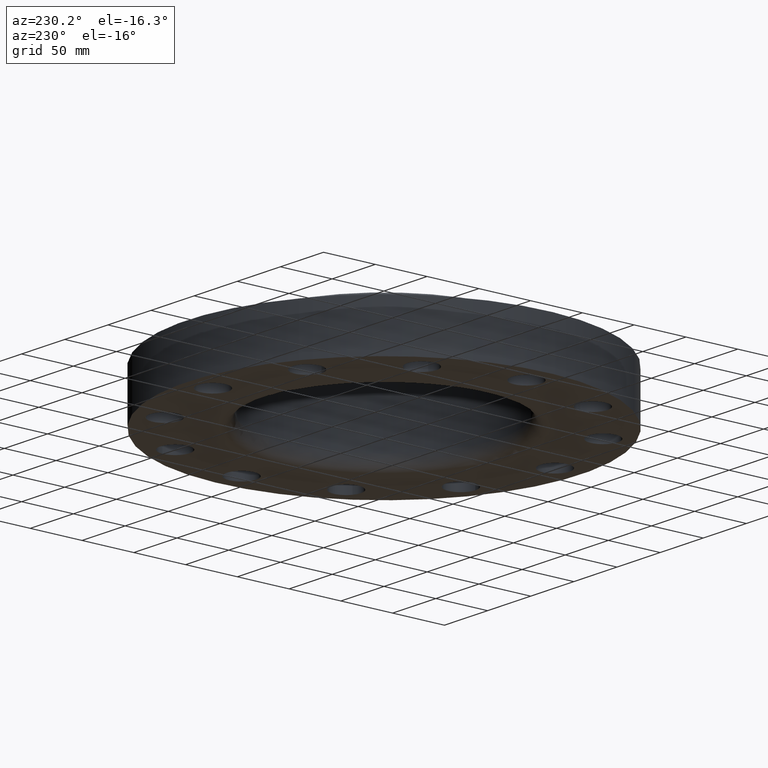
[diagram: clean part render]
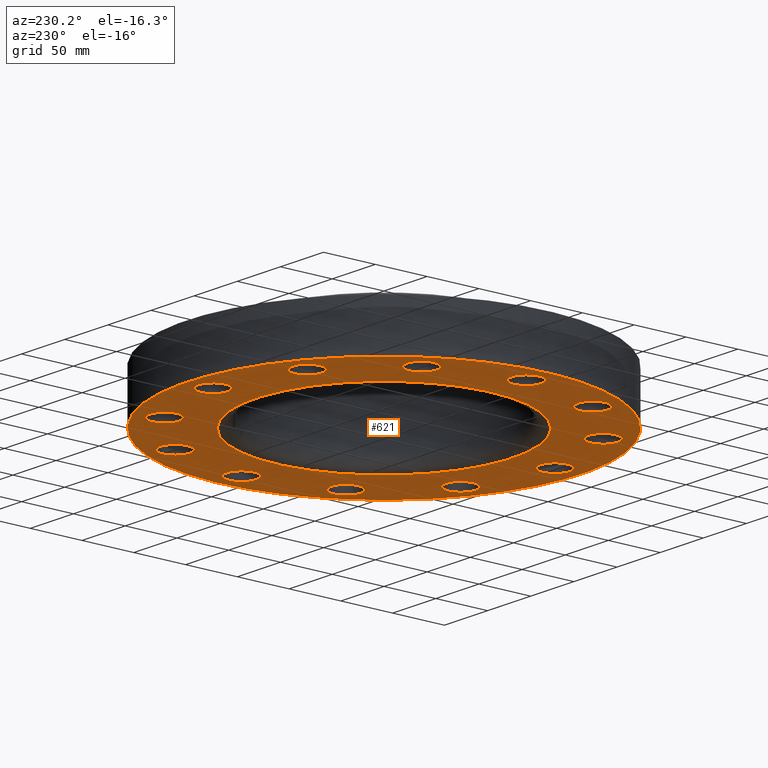
[diagram: same view with one face highlighted and labeled with its STEP entity id]
A machine part, auxiliary view. The second image highlights one B-rep face of the part: STEP entity #621.
In plain terms, the highlighted planar face has unit normal (0, 0, -1).
Its self-contained STEP definition (entity closure, byte-faithful):
#51=AXIS2_PLACEMENT_3D('Circle Axis2P3D',#49,#50,$) ;
#77=AXIS2_PLACEMENT_3D('Circle Axis2P3D',#75,#76,$) ;
#99=AXIS2_PLACEMENT_3D('Circle Axis2P3D',#97,#98,$) ;
#134=AXIS2_PLACEMENT_3D('Circle Axis2P3D',#132,#133,$) ;
#377=AXIS2_PLACEMENT_3D('Circle Axis2P3D',#375,#376,$) ;
#396=AXIS2_PLACEMENT_3D('Circle Axis2P3D',#394,#395,$) ;
#409=AXIS2_PLACEMENT_3D('Plane Axis2P3D',#406,#407,#408) ;
#425=AXIS2_PLACEMENT_3D('Circle Axis2P3D',#423,#424,$) ;
#434=AXIS2_PLACEMENT_3D('Circle Axis2P3D',#432,#433,$) ;
#443=AXIS2_PLACEMENT_3D('Circle Axis2P3D',#441,#442,$) ;
#452=AXIS2_PLACEMENT_3D('Circle Axis2P3D',#450,#451,$) ;
#461=AXIS2_PLACEMENT_3D('Circle Axis2P3D',#459,#460,$) ;
#470=AXIS2_PLACEMENT_3D('Circle Axis2P3D',#468,#469,$) ;
#479=AXIS2_PLACEMENT_3D('Circle Axis2P3D',#477,#478,$) ;
#488=AXIS2_PLACEMENT_3D('Circle Axis2P3D',#486,#487,$) ;
#497=AXIS2_PLACEMENT_3D('Circle Axis2P3D',#495,#496,$) ;
#506=AXIS2_PLACEMENT_3D('Circle Axis2P3D',#504,#505,$) ;
#515=AXIS2_PLACEMENT_3D('Circle Axis2P3D',#513,#514,$) ;
#524=AXIS2_PLACEMENT_3D('Circle Axis2P3D',#522,#523,$) ;
#533=AXIS2_PLACEMENT_3D('Circle Axis2P3D',#531,#532,$) ;
#542=AXIS2_PLACEMENT_3D('Circle Axis2P3D',#540,#541,$) ;
#551=AXIS2_PLACEMENT_3D('Circle Axis2P3D',#549,#550,$) ;
#560=AXIS2_PLACEMENT_3D('Circle Axis2P3D',#558,#559,$) ;
#569=AXIS2_PLACEMENT_3D('Circle Axis2P3D',#567,#568,$) ;
#578=AXIS2_PLACEMENT_3D('Circle Axis2P3D',#576,#577,$) ;
#587=AXIS2_PLACEMENT_3D('Circle Axis2P3D',#585,#586,$) ;
#596=AXIS2_PLACEMENT_3D('Circle Axis2P3D',#594,#595,$) ;
#605=AXIS2_PLACEMENT_3D('Circle Axis2P3D',#603,#604,$) ;
#614=AXIS2_PLACEMENT_3D('Circle Axis2P3D',#612,#613,$) ;
#44=CARTESIAN_POINT('Vertex',(6.00855376537,0.268478301619,0.)) ;
#49=CARTESIAN_POINT('Axis2P3D Location',(6.50000000003,0.,0.)) ;
#53=CARTESIAN_POINT('Vertex',(6.99144623469,-0.268478301619,0.)) ;
#75=CARTESIAN_POINT('Axis2P3D Location',(6.50000000003,0.,0.)) ;
#97=CARTESIAN_POINT('Axis2P3D Location',(0.,0.,8.39223703654E-016)) ;
#101=CARTESIAN_POINT('Vertex',(-3.59569153955,-6.5818692142,8.39223703654E-016)) ;
#103=CARTESIAN_POINT('Vertex',(3.59569153955,6.5818692142,8.39223703654E-016)) ;
#132=CARTESIAN_POINT('Axis2P3D Location',(0.,0.,8.39223703654E-016)) ;
#372=CARTESIAN_POINT('Vertex',(-2.3371995007,-4.27821498923,-4.89547160465E-016)) ;
#375=CARTESIAN_POINT('Axis2P3D Location',(0.,0.,-4.89547160465E-016)) ;
#379=CARTESIAN_POINT('Vertex',(2.3371995007,4.27821498923,-4.89547160465E-016)) ;
#394=CARTESIAN_POINT('Axis2P3D Location',(0.,0.,-4.89547160465E-016)) ;
#406=CARTESIAN_POINT('Axis2P3D Location',(0.,4.87500000002,0.)) ;
#423=CARTESIAN_POINT('Axis2P3D Location',(5.62916512462,-3.25000000001,0.)) ;
#427=CARTESIAN_POINT('Vertex',(5.33779935162,-2.77176785312,0.)) ;
#429=CARTESIAN_POINT('Vertex',(5.92053089762,-3.72823214691,0.)) ;
#432=CARTESIAN_POINT('Axis2P3D Location',(5.62916512462,-3.25000000001,0.)) ;
#441=CARTESIAN_POINT('Axis2P3D Location',(3.25000000001,-5.62916512462,0.)) ;
#445=CARTESIAN_POINT('Vertex',(3.23678591225,-5.06932105,0.)) ;
#447=CARTESIAN_POINT('Vertex',(3.26321408778,-6.18900919924,0.)) ;
#450=CARTESIAN_POINT('Axis2P3D Location',(3.25000000001,-5.62916512462,0.)) ;
#459=CARTESIAN_POINT('Axis2P3D Location',(-1.95818864186E-015,-6.50000000003,0.)) ;
#463=CARTESIAN_POINT('Vertex',(0.268478301619,-6.00855376537,0.)) ;
#465=CARTESIAN_POINT('Vertex',(-0.268478301619,-6.99144623469,0.)) ;
#468=CARTESIAN_POINT('Axis2P3D Location',(-6.99353086378E-016,-6.50000000003,0.)) ;
#477=CARTESIAN_POINT('Axis2P3D Location',(-3.25000000001,-5.62916512462,0.)) ;
#481=CARTESIAN_POINT('Vertex',(-2.77176785312,-5.33779935162,0.)) ;
#483=CARTESIAN_POINT('Vertex',(-3.72823214691,-5.92053089762,-1.67844740731E-015)) ;
#486=CARTESIAN_POINT('Axis2P3D Location',(-3.25000000001,-5.62916512462,0.)) ;
#495=CARTESIAN_POINT('Axis2P3D Location',(-5.62916512462,-3.25000000001,0.)) ;
#499=CARTESIAN_POINT('Vertex',(-5.06932105,-3.23678591225,0.)) ;
#501=CARTESIAN_POINT('Vertex',(-6.18900919924,-3.26321408778,0.)) ;
#504=CARTESIAN_POINT('Axis2P3D Location',(-5.62916512462,-3.25000000001,0.)) ;
#513=CARTESIAN_POINT('Axis2P3D Location',(-6.50000000003,0.,0.)) ;
#517=CARTESIAN_POINT('Vertex',(-6.00855376537,-0.268478301619,0.)) ;
#519=CARTESIAN_POINT('Vertex',(-6.99144623469,0.268478301619,0.)) ;
#522=CARTESIAN_POINT('Axis2P3D Location',(-6.50000000003,-5.59482469102E-016,0.)) ;
#531=CARTESIAN_POINT('Axis2P3D Location',(-5.62916512462,3.25000000001,0.)) ;
#535=CARTESIAN_POINT('Vertex',(-5.33779935162,2.77176785312,0.)) ;
#537=CARTESIAN_POINT('Vertex',(-5.92053089762,3.72823214691,0.)) ;
#540=CARTESIAN_POINT('Axis2P3D Location',(-5.62916512462,3.25000000001,0.)) ;
#549=CARTESIAN_POINT('Axis2P3D Location',(-3.25000000001,5.62916512462,0.)) ;
#553=CARTESIAN_POINT('Vertex',(-3.23678591225,5.06932105,0.)) ;
#555=CARTESIAN_POINT('Vertex',(-3.26321408778,6.18900919924,0.)) ;
#558=CARTESIAN_POINT('Axis2P3D Location',(-3.25000000001,5.62916512462,0.)) ;
#567=CARTESIAN_POINT('Axis2P3D Location',(-7.69288395016E-016,6.50000000003,0.)) ;
#571=CARTESIAN_POINT('Vertex',(-0.268478301619,6.00855376537,0.)) ;
#573=CARTESIAN_POINT('Vertex',(0.268478301619,6.99144623469,0.)) ;
#576=CARTESIAN_POINT('Axis2P3D Location',(-1.60851209867E-015,6.50000000003,0.)) ;
#585=CARTESIAN_POINT('Axis2P3D Location',(3.25000000001,5.62916512462,0.)) ;
#589=CARTESIAN_POINT('Vertex',(2.77176785312,5.33779935162,0.)) ;
#591=CARTESIAN_POINT('Vertex',(3.72823214691,5.92053089762,0.)) ;
#594=CARTESIAN_POINT('Axis2P3D Location',(3.25000000001,5.62916512462,0.)) ;
#603=CARTESIAN_POINT('Axis2P3D Location',(5.62916512462,3.25000000001,0.)) ;
#607=CARTESIAN_POINT('Vertex',(5.06932105,3.23678591225,0.)) ;
#609=CARTESIAN_POINT('Vertex',(6.18900919924,3.26321408778,0.)) ;
#612=CARTESIAN_POINT('Axis2P3D Location',(5.62916512462,3.25000000001,0.)) ;
#50=DIRECTION('Axis2P3D Direction',(0.,-0.,-0.0393700787402)) ;
#76=DIRECTION('Axis2P3D Direction',(0.,-0.,-0.0393700787402)) ;
#98=DIRECTION('Axis2P3D Direction',(0.,0.,-0.0393700787402)) ;
#133=DIRECTION('Axis2P3D Direction',(0.,0.,-0.0393700787402)) ;
#376=DIRECTION('Axis2P3D Direction',(0.,0.,-0.0393700787402)) ;
#395=DIRECTION('Axis2P3D Direction',(0.,0.,-0.0393700787402)) ;
#407=DIRECTION('Axis2P3D Direction',(0.,0.,-0.0393700787402)) ;
#408=DIRECTION('Axis2P3D XDirection',(0.0393700787402,0.,0.)) ;
#424=DIRECTION('Axis2P3D Direction',(0.,0.,-0.0393700787402)) ;
#433=DIRECTION('Axis2P3D Direction',(0.,0.,-0.0393700787402)) ;
#442=DIRECTION('Axis2P3D Direction',(0.,0.,-0.0393700787402)) ;
#451=DIRECTION('Axis2P3D Direction',(0.,0.,-0.0393700787402)) ;
#460=DIRECTION('Axis2P3D Direction',(0.,0.,-0.0393700787402)) ;
#469=DIRECTION('Axis2P3D Direction',(0.,0.,-0.0393700787402)) ;
#478=DIRECTION('Axis2P3D Direction',(0.,0.,-0.0393700787402)) ;
#487=DIRECTION('Axis2P3D Direction',(0.,0.,-0.0393700787402)) ;
#496=DIRECTION('Axis2P3D Direction',(0.,0.,-0.0393700787402)) ;
#505=DIRECTION('Axis2P3D Direction',(0.,0.,-0.0393700787402)) ;
#514=DIRECTION('Axis2P3D Direction',(0.,0.,-0.0393700787402)) ;
#523=DIRECTION('Axis2P3D Direction',(0.,0.,-0.0393700787402)) ;
#532=DIRECTION('Axis2P3D Direction',(0.,0.,-0.0393700787402)) ;
#541=DIRECTION('Axis2P3D Direction',(0.,0.,-0.0393700787402)) ;
#550=DIRECTION('Axis2P3D Direction',(0.,0.,-0.0393700787402)) ;
#559=DIRECTION('Axis2P3D Direction',(0.,0.,-0.0393700787402)) ;
#568=DIRECTION('Axis2P3D Direction',(0.,0.,-0.0393700787402)) ;
#577=DIRECTION('Axis2P3D Direction',(0.,0.,-0.0393700787402)) ;
#586=DIRECTION('Axis2P3D Direction',(0.,0.,-0.0393700787402)) ;
#595=DIRECTION('Axis2P3D Direction',(0.,0.,-0.0393700787402)) ;
#604=DIRECTION('Axis2P3D Direction',(0.,0.,-0.0393700787402)) ;
#613=DIRECTION('Axis2P3D Direction',(0.,0.,-0.0393700787402)) ;
#412=ORIENTED_EDGE('',*,*,#105,.T.) ;
#413=ORIENTED_EDGE('',*,*,#136,.T.) ;
#416=ORIENTED_EDGE('',*,*,#79,.F.) ;
#417=ORIENTED_EDGE('',*,*,#55,.F.) ;
#420=ORIENTED_EDGE('',*,*,#398,.F.) ;
#421=ORIENTED_EDGE('',*,*,#381,.F.) ;
#438=ORIENTED_EDGE('',*,*,#431,.F.) ;
#439=ORIENTED_EDGE('',*,*,#436,.F.) ;
#456=ORIENTED_EDGE('',*,*,#449,.F.) ;
#457=ORIENTED_EDGE('',*,*,#454,.F.) ;
#474=ORIENTED_EDGE('',*,*,#467,.F.) ;
#475=ORIENTED_EDGE('',*,*,#472,.F.) ;
#492=ORIENTED_EDGE('',*,*,#485,.F.) ;
#493=ORIENTED_EDGE('',*,*,#490,.F.) ;
#510=ORIENTED_EDGE('',*,*,#503,.F.) ;
#511=ORIENTED_EDGE('',*,*,#508,.F.) ;
#528=ORIENTED_EDGE('',*,*,#521,.F.) ;
#529=ORIENTED_EDGE('',*,*,#526,.F.) ;
#546=ORIENTED_EDGE('',*,*,#539,.F.) ;
#547=ORIENTED_EDGE('',*,*,#544,.F.) ;
#564=ORIENTED_EDGE('',*,*,#557,.F.) ;
#565=ORIENTED_EDGE('',*,*,#562,.F.) ;
#582=ORIENTED_EDGE('',*,*,#575,.F.) ;
#583=ORIENTED_EDGE('',*,*,#580,.F.) ;
#600=ORIENTED_EDGE('',*,*,#593,.F.) ;
#601=ORIENTED_EDGE('',*,*,#598,.F.) ;
#618=ORIENTED_EDGE('',*,*,#611,.F.) ;
#619=ORIENTED_EDGE('',*,*,#616,.F.) ;
#418=FACE_BOUND('',#415,.T.) ;
#422=FACE_BOUND('',#419,.T.) ;
#440=FACE_BOUND('',#437,.T.) ;
#458=FACE_BOUND('',#455,.T.) ;
#476=FACE_BOUND('',#473,.T.) ;
#494=FACE_BOUND('',#491,.T.) ;
#512=FACE_BOUND('',#509,.T.) ;
#530=FACE_BOUND('',#527,.T.) ;
#548=FACE_BOUND('',#545,.T.) ;
#566=FACE_BOUND('',#563,.T.) ;
#584=FACE_BOUND('',#581,.T.) ;
#602=FACE_BOUND('',#599,.T.) ;
#620=FACE_BOUND('',#617,.T.) ;
#621=ADVANCED_FACE('PartBody',(#414,#418,#422,#440,#458,#476,#494,#512,#530,#548,#566,#584,#602,#620),#410,.T.) ;
#52=CIRCLE('generated circle',#51,0.560000000002) ;
#78=CIRCLE('generated circle',#77,0.560000000002) ;
#100=CIRCLE('generated circle',#99,7.50000000003) ;
#135=CIRCLE('generated circle',#134,7.50000000003) ;
#378=CIRCLE('generated circle',#377,4.87500000002) ;
#397=CIRCLE('generated circle',#396,4.87500000002) ;
#426=CIRCLE('generated circle',#425,0.560000000002) ;
#435=CIRCLE('generated circle',#434,0.560000000002) ;
#444=CIRCLE('generated circle',#443,0.560000000002) ;
#453=CIRCLE('generated circle',#452,0.560000000002) ;
#462=CIRCLE('generated circle',#461,0.560000000002) ;
#471=CIRCLE('generated circle',#470,0.560000000002) ;
#480=CIRCLE('generated circle',#479,0.560000000002) ;
#489=CIRCLE('generated circle',#488,0.560000000002) ;
#498=CIRCLE('generated circle',#497,0.560000000002) ;
#507=CIRCLE('generated circle',#506,0.560000000002) ;
#516=CIRCLE('generated circle',#515,0.560000000002) ;
#525=CIRCLE('generated circle',#524,0.560000000002) ;
#534=CIRCLE('generated circle',#533,0.560000000002) ;
#543=CIRCLE('generated circle',#542,0.560000000002) ;
#552=CIRCLE('generated circle',#551,0.560000000002) ;
#561=CIRCLE('generated circle',#560,0.560000000002) ;
#570=CIRCLE('generated circle',#569,0.560000000002) ;
#579=CIRCLE('generated circle',#578,0.560000000002) ;
#588=CIRCLE('generated circle',#587,0.560000000002) ;
#597=CIRCLE('generated circle',#596,0.560000000002) ;
#606=CIRCLE('generated circle',#605,0.560000000002) ;
#615=CIRCLE('generated circle',#614,0.560000000002) ;
#55=EDGE_CURVE('',#45,#54,#52,.T.) ;
#79=EDGE_CURVE('',#54,#45,#78,.T.) ;
#105=EDGE_CURVE('',#102,#104,#100,.T.) ;
#136=EDGE_CURVE('',#104,#102,#135,.T.) ;
#381=EDGE_CURVE('',#373,#380,#378,.T.) ;
#398=EDGE_CURVE('',#380,#373,#397,.T.) ;
#431=EDGE_CURVE('',#428,#430,#426,.T.) ;
#436=EDGE_CURVE('',#430,#428,#435,.T.) ;
#449=EDGE_CURVE('',#446,#448,#444,.T.) ;
#454=EDGE_CURVE('',#448,#446,#453,.T.) ;
#467=EDGE_CURVE('',#464,#466,#462,.T.) ;
#472=EDGE_CURVE('',#466,#464,#471,.T.) ;
#485=EDGE_CURVE('',#482,#484,#480,.T.) ;
#490=EDGE_CURVE('',#484,#482,#489,.T.) ;
#503=EDGE_CURVE('',#500,#502,#498,.T.) ;
#508=EDGE_CURVE('',#502,#500,#507,.T.) ;
#521=EDGE_CURVE('',#518,#520,#516,.T.) ;
#526=EDGE_CURVE('',#520,#518,#525,.T.) ;
#539=EDGE_CURVE('',#536,#538,#534,.T.) ;
#544=EDGE_CURVE('',#538,#536,#543,.T.) ;
#557=EDGE_CURVE('',#554,#556,#552,.T.) ;
#562=EDGE_CURVE('',#556,#554,#561,.T.) ;
#575=EDGE_CURVE('',#572,#574,#570,.T.) ;
#580=EDGE_CURVE('',#574,#572,#579,.T.) ;
#593=EDGE_CURVE('',#590,#592,#588,.T.) ;
#598=EDGE_CURVE('',#592,#590,#597,.T.) ;
#611=EDGE_CURVE('',#608,#610,#606,.T.) ;
#616=EDGE_CURVE('',#610,#608,#615,.T.) ;
#411=EDGE_LOOP('',(#412,#413)) ;
#415=EDGE_LOOP('',(#416,#417)) ;
#419=EDGE_LOOP('',(#420,#421)) ;
#437=EDGE_LOOP('',(#438,#439)) ;
#455=EDGE_LOOP('',(#456,#457)) ;
#473=EDGE_LOOP('',(#474,#475)) ;
#491=EDGE_LOOP('',(#492,#493)) ;
#509=EDGE_LOOP('',(#510,#511)) ;
#527=EDGE_LOOP('',(#528,#529)) ;
#545=EDGE_LOOP('',(#546,#547)) ;
#563=EDGE_LOOP('',(#564,#565)) ;
#581=EDGE_LOOP('',(#582,#583)) ;
#599=EDGE_LOOP('',(#600,#601)) ;
#617=EDGE_LOOP('',(#618,#619)) ;
#414=FACE_OUTER_BOUND('',#411,.T.) ;
#410=PLANE('',#409) ;
#45=VERTEX_POINT('',#44) ;
#54=VERTEX_POINT('',#53) ;
#102=VERTEX_POINT('',#101) ;
#104=VERTEX_POINT('',#103) ;
#373=VERTEX_POINT('',#372) ;
#380=VERTEX_POINT('',#379) ;
#428=VERTEX_POINT('',#427) ;
#430=VERTEX_POINT('',#429) ;
#446=VERTEX_POINT('',#445) ;
#448=VERTEX_POINT('',#447) ;
#464=VERTEX_POINT('',#463) ;
#466=VERTEX_POINT('',#465) ;
#482=VERTEX_POINT('',#481) ;
#484=VERTEX_POINT('',#483) ;
#500=VERTEX_POINT('',#499) ;
#502=VERTEX_POINT('',#501) ;
#518=VERTEX_POINT('',#517) ;
#520=VERTEX_POINT('',#519) ;
#536=VERTEX_POINT('',#535) ;
#538=VERTEX_POINT('',#537) ;
#554=VERTEX_POINT('',#553) ;
#556=VERTEX_POINT('',#555) ;
#572=VERTEX_POINT('',#571) ;
#574=VERTEX_POINT('',#573) ;
#590=VERTEX_POINT('',#589) ;
#592=VERTEX_POINT('',#591) ;
#608=VERTEX_POINT('',#607) ;
#610=VERTEX_POINT('',#609) ;